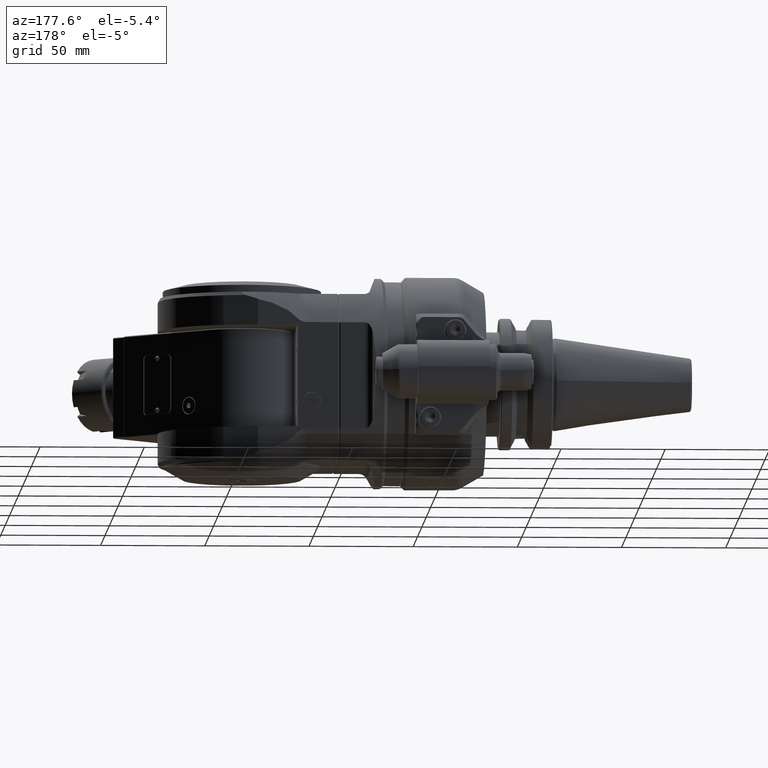
[diagram: clean part render]
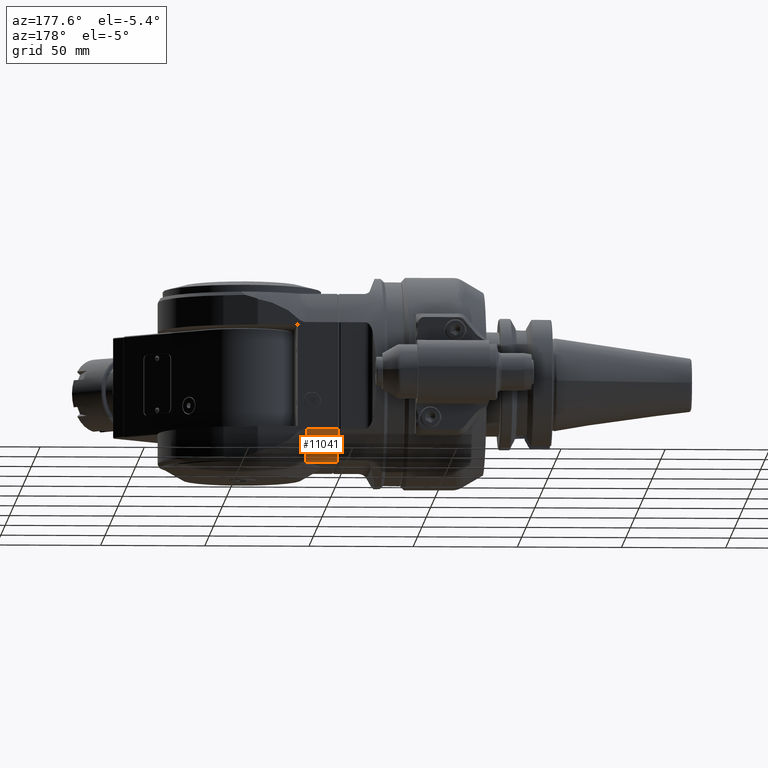
[diagram: same view with one face highlighted and labeled with its STEP entity id]
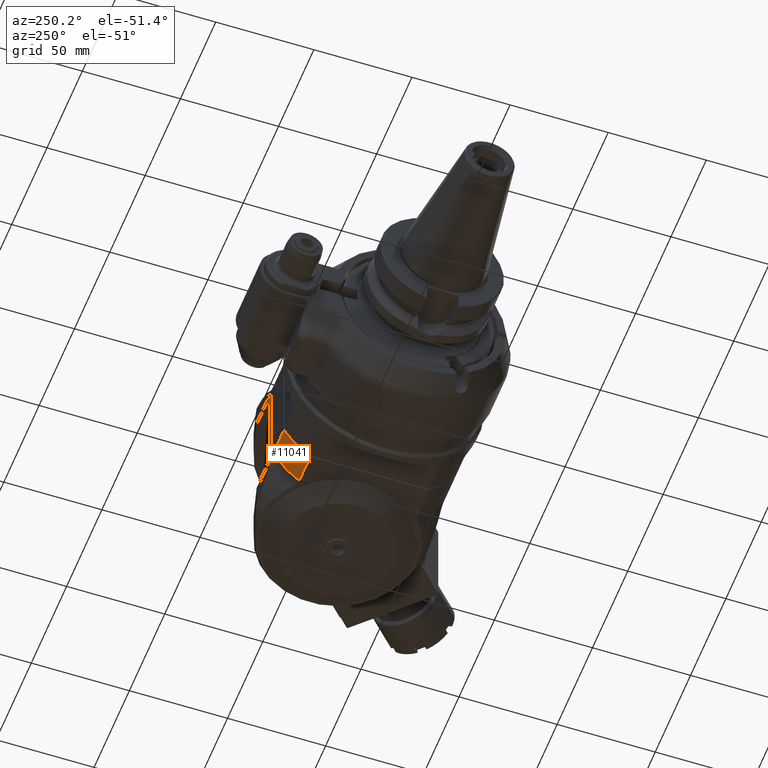
[diagram: same view with one face highlighted and labeled with its STEP entity id]
A machine part, auxiliary view. The second image highlights one B-rep face of the part: STEP entity #11041.
A second angle (auxiliary view) of the same face is appended — the face is thin or edge-on in the first view.
In plain terms, the highlighted cylindrical surface (partial cylindrical patch) has radius 50.5 mm, axis along (1, 0, 0).
Its self-contained STEP definition (entity closure, byte-faithful):
#1231=FACE_OUTER_BOUND('',#1948,.T.);
#1948=EDGE_LOOP('',(#8972,#8973,#8974,#8975));
#2583=CIRCLE('',#12019,50.5);
#2584=CIRCLE('',#12021,50.5);
#3310=LINE('',#48445,#4124);
#3316=LINE('',#48512,#4130);
#4124=VECTOR('',#14145,15.28305337357);
#4130=VECTOR('',#14175,15.28305337357);
#5106=VERTEX_POINT('',#48435);
#5107=VERTEX_POINT('',#48444);
#5121=VERTEX_POINT('',#48500);
#5122=VERTEX_POINT('',#48511);
#6471=EDGE_CURVE('',#5107,#5106,#3310,.T.);
#6491=EDGE_CURVE('',#5121,#5106,#2583,.T.);
#6492=EDGE_CURVE('',#5121,#5122,#3316,.T.);
#6493=EDGE_CURVE('',#5107,#5122,#2584,.T.);
#8972=ORIENTED_EDGE('',*,*,#6471,.T.);
#8973=ORIENTED_EDGE('',*,*,#6491,.F.);
#8974=ORIENTED_EDGE('',*,*,#6492,.T.);
#8975=ORIENTED_EDGE('',*,*,#6493,.F.);
#10641=CYLINDRICAL_SURFACE('',#12020,50.5);
#11041=ADVANCED_FACE('',(#1231),#10641,.T.);
#12019=AXIS2_PLACEMENT_3D('',#48509,#14171,#14172);
#12020=AXIS2_PLACEMENT_3D('',#48510,#14173,#14174);
#12021=AXIS2_PLACEMENT_3D('',#48513,#14176,#14177);
#14145=DIRECTION('',(1.,1.162304937358E-14,0.));
#14171=DIRECTION('center_axis',(1.,0.,0.));
#14172=DIRECTION('ref_axis',(0.,-0.801980198019817,-0.597350618970212));
#14173=DIRECTION('center_axis',(1.,0.,0.));
#14174=DIRECTION('ref_axis',(0.,-0.687385706893218,0.72629256498942));
#14175=DIRECTION('',(-1.,1.022828344875E-14,-3.02199283713E-14));
#14176=DIRECTION('center_axis',(-1.,0.,0.));
#14177=DIRECTION('ref_axis',(0.,-0.507950706470489,-0.861386138613881));
#48435=CARTESIAN_POINT('',(77.78305337357,-25.65151067676,-43.5));
#48444=CARTESIAN_POINT('',(62.5,-25.65151067676,-43.5));
#48445=CARTESIAN_POINT('',(62.5,-25.65151067676,-43.5));
#48500=CARTESIAN_POINT('',(77.78305337357,-40.5,-30.166206258));
#48509=CARTESIAN_POINT('Origin',(77.78305337357,0.,0.));
#48510=CARTESIAN_POINT('Origin',(74.5,0.,0.));
#48511=CARTESIAN_POINT('',(62.5,-40.5,-30.166206258));
#48512=CARTESIAN_POINT('',(77.78305337357,-40.5,-30.166206258));
#48513=CARTESIAN_POINT('Origin',(62.5,0.,0.));